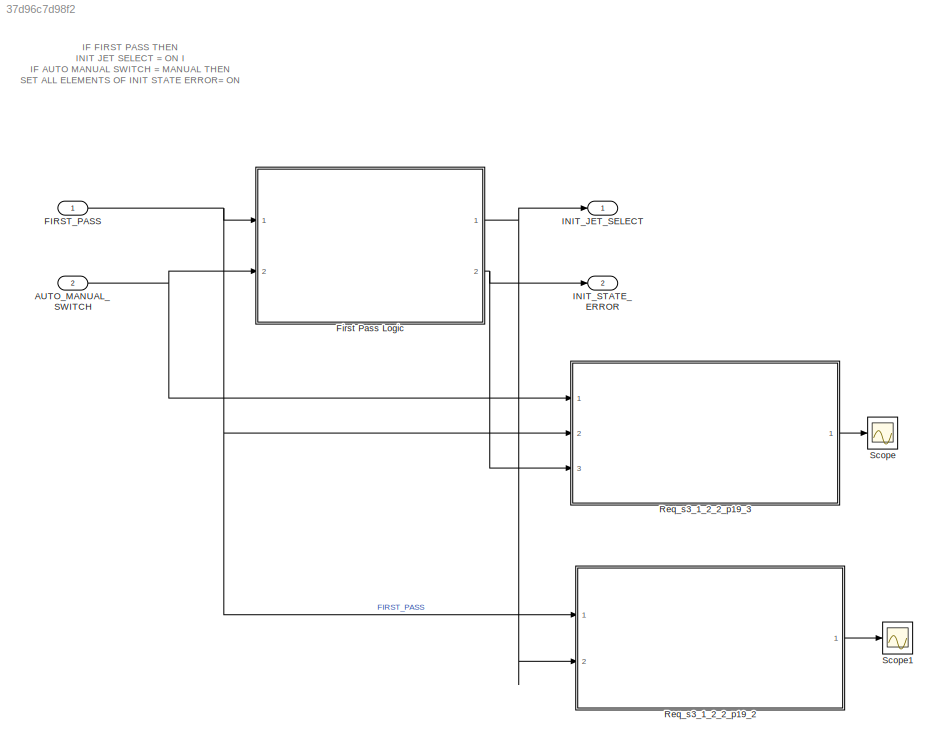
MODEL slx_37d96c7d98f2
KIND model
CONFIG AbsTol = auto
CONFIG EnableMultiTasking = off
CONFIG FixedStep = 0.08
CONFIG MaxStep = auto
CONFIG MinStep = auto
CONFIG RelTol = 1e-3
CONFIG SampleTimeConstraint = Unconstrained
CONFIG Solver = FixedStepAuto
CONFIG SolverName = FixedStepAuto
CONFIG StartTime = 0.0
CONFIG StopTime = 10.0
WORKSPACE source: MAT-file member
WORKSPACE MCOS: class17 (value not decoded)
BLOCK [Inport] AUTO_MANUAL_SWITCH
  IconDisplay = Port number
  OutDataTypeStr = boolean
  Port = 2
  PortDimensions = 1
BLOCK [Inport] FIRST_PASS
  IconDisplay = Port number
  OutDataTypeStr = boolean
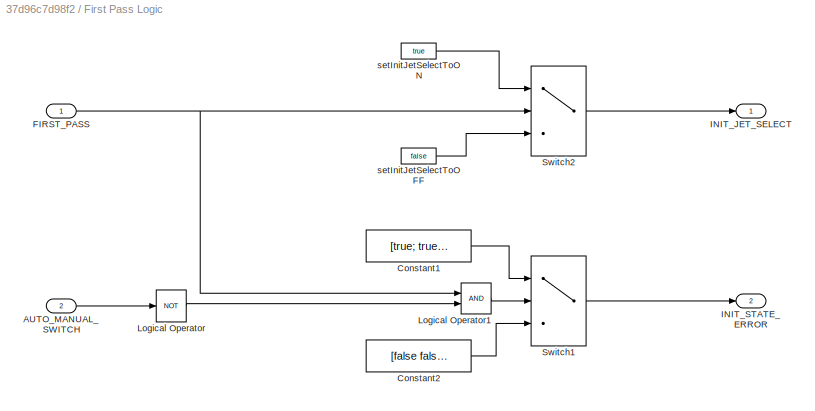
BLOCK [SubSystem] First Pass Logic
  Ports = [2, 2]
  RequestExecContextInheritance = off
  Variant = off
BLOCK [Inport] First Pass Logic/AUTO_MANUAL_SWITCH
  IconDisplay = Port number
  Port = 2
BLOCK [Constant] First Pass Logic/Constant1
  OutDataTypeStr = boolean
  Value = [true; true; true]
BLOCK [Constant] First Pass Logic/Constant2
  OutDataTypeStr = boolean
  Value = [false false false]
BLOCK [Inport] First Pass Logic/FIRST_PASS
  IconDisplay = Port number
BLOCK [Outport] First Pass Logic/INIT_JET_SELECT
  IconDisplay = Port number
BLOCK [Outport] First Pass Logic/INIT_STATE_ERROR
  IconDisplay = Port number
  Port = 2
BLOCK [Logic] First Pass Logic/Logical Operator
  AllPortsSameDT = off
  Operator = NOT
  OutDataTypeStr = boolean
  Ports = [1, 1]
BLOCK [Logic] First Pass Logic/Logical Operator1
  AllPortsSameDT = off
  OutDataTypeStr = boolean
  Ports = [2, 1]
BLOCK [Switch] First Pass Logic/Switch1
  Criteria = u2 ~= 0
  InputSameDT = off
  SaturateOnIntegerOverflow = off
BLOCK [Switch] First Pass Logic/Switch2
  Criteria = u2 ~= 0
  InputSameDT = off
  SaturateOnIntegerOverflow = off
BLOCK [Constant] First Pass Logic/setInitJetSelectToOFF
  OutDataTypeStr = boolean
  Value = false
BLOCK [Constant] First Pass Logic/setInitJetSelectToON
  OutDataTypeStr = boolean
  Value = true
BLOCK [Outport] INIT_JET_SELECT
  IconDisplay = Port number
BLOCK [Outport] INIT_STATE_ERROR
  IconDisplay = Port number
  Port = 2
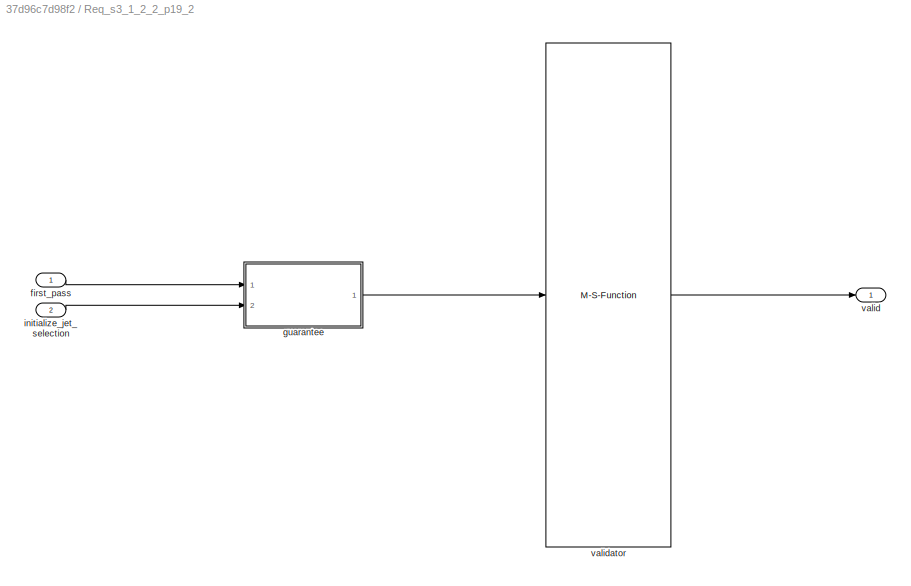
BLOCK [SubSystem] Req_s3_1_2_2_p19_2
  CopyFcn = set_param(gcb, 'LinkStatus', 'none');
  Ports = [2, 1]
  RequestExecContextInheritance = off
  Variant = off
BLOCK [Inport] Req_s3_1_2_2_p19_2/first_pass
  IconDisplay = Port number
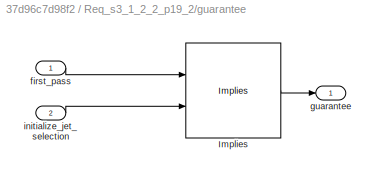
BLOCK [SubSystem] Req_s3_1_2_2_p19_2/guarantee
  Ports = [2, 1]
  RequestExecContextInheritance = off
  Variant = off
BLOCK [Reference] Req_s3_1_2_2_p19_2/guarantee/Implies  REF=sldvlib/Verification Utilities/Implies
  Ports = [2, 1]
  SourceBlock = sldvlib/Verification Utilities/Implies
  SourceProductBaseCode = DV
  SourceProductName = Simulink Design Verifier
  SourceType = Design Verifier Implies
BLOCK [Inport] Req_s3_1_2_2_p19_2/guarantee/first_pass
  IconDisplay = Port number
BLOCK [Outport] Req_s3_1_2_2_p19_2/guarantee/guarantee
  IconDisplay = Port number
  OutDataTypeStr = boolean
BLOCK [Inport] Req_s3_1_2_2_p19_2/guarantee/initialize_jet_selection
  IconDisplay = Port number
  Port = 2
BLOCK [Inport] Req_s3_1_2_2_p19_2/initialize_jet_selection
  IconDisplay = Port number
  Port = 2
BLOCK [Outport] Req_s3_1_2_2_p19_2/valid
  IconDisplay = Port number
BLOCK [M-S-Function] Req_s3_1_2_2_p19_2/validator
  FunctionName = contract
  InitFcn = contractBeforeSimulation();
  LoadFcn = saveValidatorParameters(gcb);
  Ports = [1, 1]
  StopFcn = contractAfterSimulation();
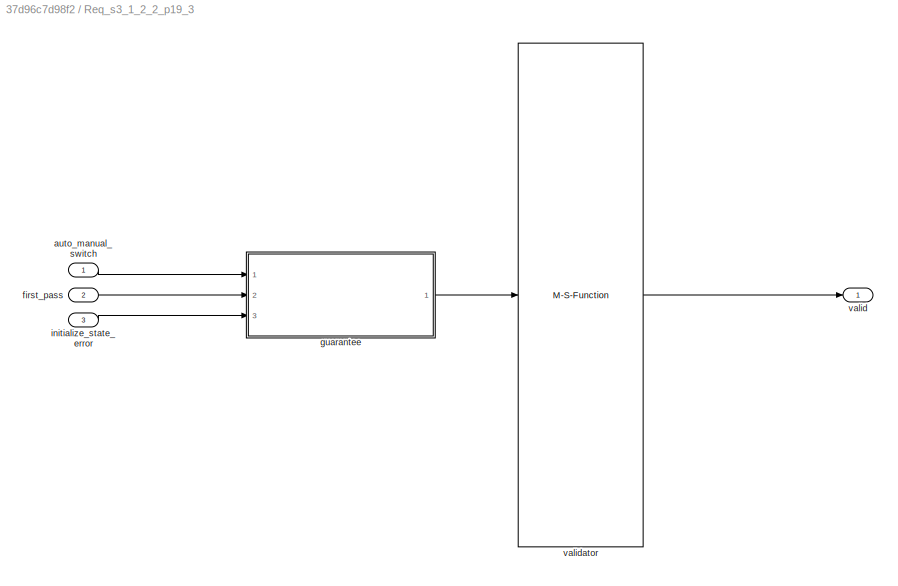
BLOCK [SubSystem] Req_s3_1_2_2_p19_3
  CopyFcn = set_param(gcb, 'LinkStatus', 'none');
  Ports = [3, 1]
  RequestExecContextInheritance = off
  Variant = off
BLOCK [Inport] Req_s3_1_2_2_p19_3/auto_manual_switch
  IconDisplay = Port number
BLOCK [Inport] Req_s3_1_2_2_p19_3/first_pass
  IconDisplay = Port number
  Port = 2
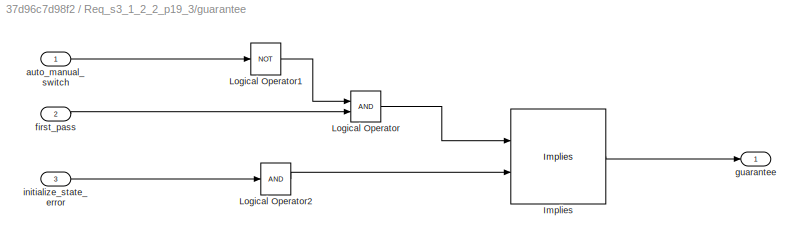
BLOCK [SubSystem] Req_s3_1_2_2_p19_3/guarantee
  Ports = [3, 1]
  RequestExecContextInheritance = off
  Variant = off
BLOCK [Reference] Req_s3_1_2_2_p19_3/guarantee/Implies  REF=sldvlib/Verification Utilities/Implies
  Ports = [2, 1]
  SourceBlock = sldvlib/Verification Utilities/Implies
  SourceProductBaseCode = DV
  SourceProductName = Simulink Design Verifier
  SourceType = Design Verifier Implies
BLOCK [Logic] Req_s3_1_2_2_p19_3/guarantee/Logical Operator
  AllPortsSameDT = off
  OutDataTypeStr = boolean
  Ports = [2, 1]
BLOCK [Logic] Req_s3_1_2_2_p19_3/guarantee/Logical Operator1
  AllPortsSameDT = off
  Inputs = 1
  Operator = NOT
  OutDataTypeStr = boolean
  Ports = [1, 1]
BLOCK [Logic] Req_s3_1_2_2_p19_3/guarantee/Logical Operator2
  AllPortsSameDT = off
  Inputs = 1
  OutDataTypeStr = boolean
  Ports = [1, 1]
BLOCK [Inport] Req_s3_1_2_2_p19_3/guarantee/auto_manual_switch
  IconDisplay = Port number
BLOCK [Inport] Req_s3_1_2_2_p19_3/guarantee/first_pass
  IconDisplay = Port number
  Port = 2
BLOCK [Outport] Req_s3_1_2_2_p19_3/guarantee/guarantee
  IconDisplay = Port number
  OutDataTypeStr = boolean
BLOCK [Inport] Req_s3_1_2_2_p19_3/guarantee/initialize_state_error
  IconDisplay = Port number
  Port = 3
BLOCK [Inport] Req_s3_1_2_2_p19_3/initialize_state_error
  IconDisplay = Port number
  Port = 3
BLOCK [Outport] Req_s3_1_2_2_p19_3/valid
  IconDisplay = Port number
BLOCK [M-S-Function] Req_s3_1_2_2_p19_3/validator
  FunctionName = contract
  InitFcn = contractBeforeSimulation();
  LoadFcn = saveValidatorParameters(gcb);
  Ports = [1, 1]
  StopFcn = contractAfterSimulation();
BLOCK [Scope] Scope
  NumInputPorts = 1
  Ports = [1]
  ScopeSpecificationString = Simulink.scopes.TimeScopeBlockCfg('CurrentConfiguration', extmgr.ConfigurationSet(extmgr.Configuration('Core','General UI',true),extmgr.Configuration('Core','Source UI',true),extmgr.Configuration('Sources','WiredSimulink',true),extmgr.Configuration('Visuals','Time Domain',true),extmgr.Configuration('Tools','Plot Navigation',true),extmgr.Configuration('Tools','Measurements',true)),'Version','2017b'...<+1ch>
BLOCK [Scope] Scope1
  NumInputPorts = 1
  Ports = [1]
  ScopeSpecificationString = Simulink.scopes.TimeScopeBlockCfg('CurrentConfiguration', extmgr.ConfigurationSet(extmgr.Configuration('Core','General UI',true),extmgr.Configuration('Core','Source UI',true),extmgr.Configuration('Sources','WiredSimulink',true,'DataLoggingVariableName','ScopeData1'),extmgr.Configuration('Visuals','Time Domain',true),extmgr.Configuration('Tools','Plot Navigation',true),extmgr.Configuration('Tools',...<+40ch>
ANNOTATION (root): IF FIRST PASS THEN INIT JET SELECT = ON I IF AUTO MANUAL SWITCH = MANUAL THEN SET ALL ELEMENTS OF INIT STATE ERROR= ON
NET AUTO_MANUAL_SWITCH:1 -> First Pass Logic:2, Req_s3_1_2_2_p19_3:1
NET FIRST_PASS:1 -> First Pass Logic:1, Req_s3_1_2_2_p19_2:1, Req_s3_1_2_2_p19_3:2
LINE First Pass Logic/AUTO_MANUAL_SWITCH:1 -> First Pass Logic/Logical Operator:1
LINE First Pass Logic/Constant1:1 -> First Pass Logic/Switch1:1
LINE First Pass Logic/Constant2:1 -> First Pass Logic/Switch1:3
NET First Pass Logic/FIRST_PASS:1 -> First Pass Logic/Logical Operator1:1, First Pass Logic/Switch2:2
LINE First Pass Logic/Logical Operator1:1 -> First Pass Logic/Switch1:2
LINE First Pass Logic/Logical Operator:1 -> First Pass Logic/Logical Operator1:2
LINE First Pass Logic/Switch1:1 -> First Pass Logic/INIT_STATE_ERROR:1
LINE First Pass Logic/Switch2:1 -> First Pass Logic/INIT_JET_SELECT:1
LINE First Pass Logic/setInitJetSelectToOFF:1 -> First Pass Logic/Switch2:3
LINE First Pass Logic/setInitJetSelectToON:1 -> First Pass Logic/Switch2:1
NET First Pass Logic:1 -> INIT_JET_SELECT:1, Req_s3_1_2_2_p19_2:2
NET First Pass Logic:2 -> INIT_STATE_ERROR:1, Req_s3_1_2_2_p19_3:3
LINE Req_s3_1_2_2_p19_2:1 -> Scope1:1
LINE Req_s3_1_2_2_p19_3:1 -> Scope:1
note: NET lines group one-source signal fan-out (src -> all destinations, sorted); 1:1 wires keep LINE
